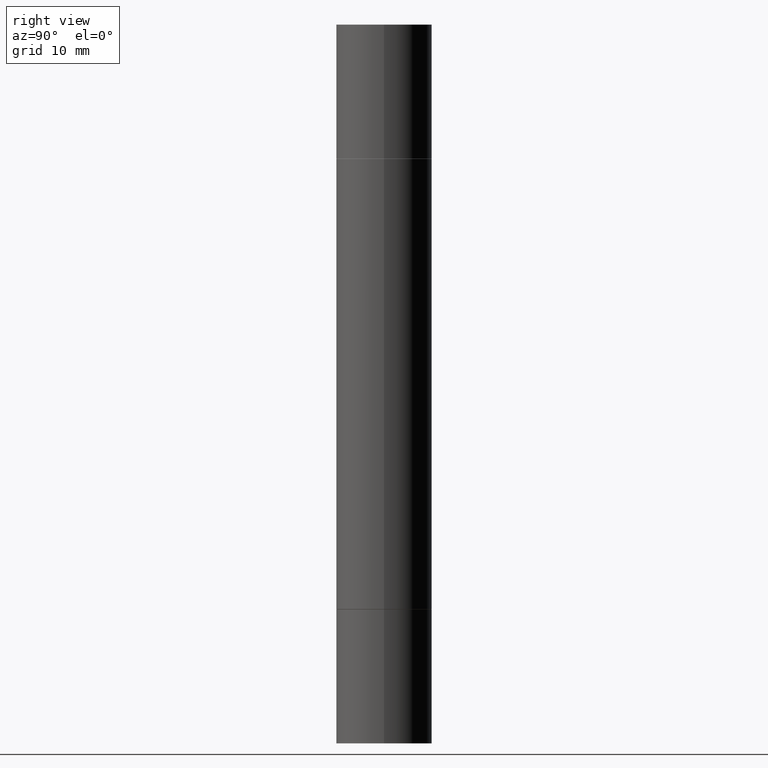
[diagram: clean part render]
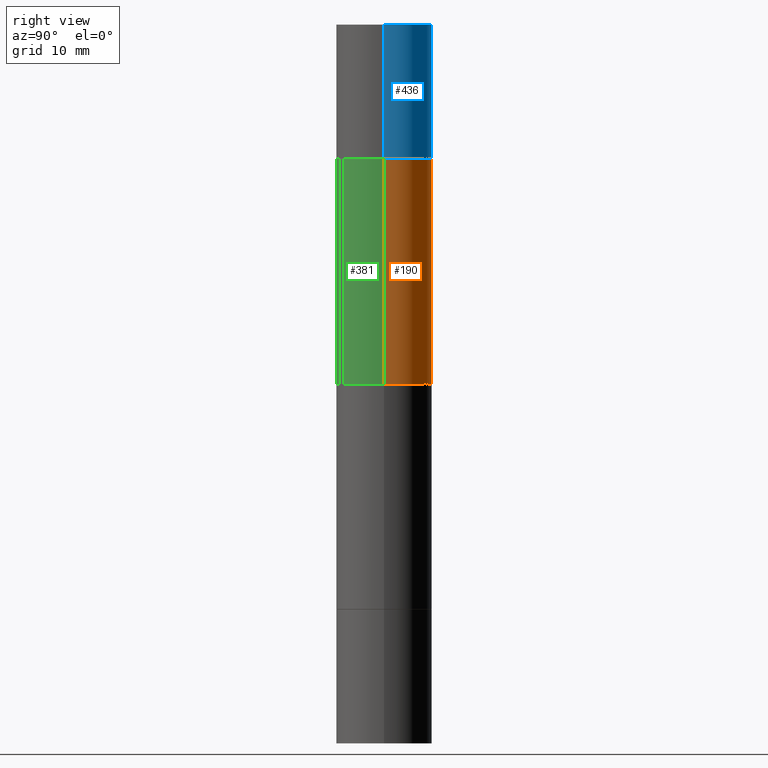
[diagram: same view with three faces highlighted in distinct colors, each labeled with its STEP entity id]
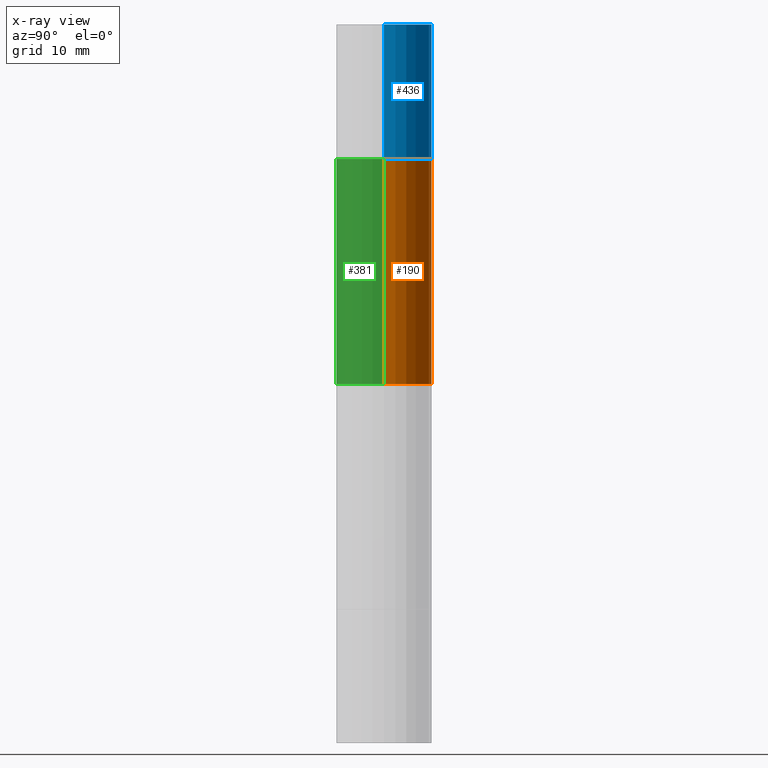
[diagram: x-ray of the same camera — body ghosted, the three highlighted faces saturated]
A machine part, right view with three faces highlighted in distinct colors.
The next image is the same camera in x-ray (body ghosted, the three faces saturated) — at least one of them is partly hidden behind the body in this view.
Their STEP definitions:

[orange] entity #190 — the highlighted cylindrical surface (partial cylindrical patch) has radius 5 mm, axis along (-0, -0, -1).
#14 = EDGE_CURVE ( 'NONE', #471, #207, #60, .T. ) ;
#21 = EDGE_CURVE ( 'NONE', #318, #207, #636, .T. ) ;
#44 = CARTESIAN_POINT ( 'NONE',  ( 5.870592416128037625E-29, -1.926693730311889446E-15, -0.5521999999999996911 ) ) ;
#54 = DIRECTION ( 'NONE',  ( 0.000000000000000000, 1.000000000000000000, -4.163344669033678790E-15 ) ) ;
#60 = LINE ( 'NONE', #326, #477 ) ;
#61 = CIRCLE ( 'NONE', #456, 0.1968500000000000250 ) ;
#157 = EDGE_LOOP ( 'NONE', ( #615, #526, #525, #640 ) ) ;
#178 = CARTESIAN_POINT ( 'NONE',  ( 3.610490145451734531E-29, -5.154823048668018475E-15, -1.476399999999999491 ) ) ;
#190 = ADVANCED_FACE ( 'NONE', ( #503 ), #298, .T. ) ;
#192 = CARTESIAN_POINT ( 'NONE',  ( 0.000000000000000000, -1.031172645228302408E-14, -2.952799999999998981 ) ) ;
#207 = VERTEX_POINT ( 'NONE', #344 ) ;
#217 = CARTESIAN_POINT ( 'NONE',  ( -0.1968499999999998307, -8.961237421421701017E-15, -2.952799999999998981 ) ) ;
#235 = AXIS2_PLACEMENT_3D ( 'NONE', #192, #667, #605 ) ;
#252 = CARTESIAN_POINT ( 'NONE',  ( -0.1968499999999998307, -2.190269358628626559E-15, -1.476399999999999491 ) ) ;
#257 = DIRECTION ( 'NONE',  ( 1.000000000000000000, -6.982962677686267499E-15, 0.000000000000000000 ) ) ;
#271 = LINE ( 'NONE', #217, #331 ) ;
#298 = CYLINDRICAL_SURFACE ( 'NONE', #235, 0.1968499999999998307 ) ;
#318 = VERTEX_POINT ( 'NONE', #252 ) ;
#325 = CARTESIAN_POINT ( 'NONE',  ( 0.1968500000000000250, -3.301289933414429871E-15, -0.5521999999999996911 ) ) ;
#326 = CARTESIAN_POINT ( 'NONE',  ( 0.1968499999999998307, -1.168632265538556411E-14, -2.952799999999998981 ) ) ;
#331 = VECTOR ( 'NONE', #634, 39.37007874015748143 ) ;
#333 = DIRECTION ( 'NONE',  ( -0.000000000000000000, -3.492185875197449130E-15, -1.000000000000000000 ) ) ;
#338 = EDGE_CURVE ( 'NONE', #471, #570, #61, .T. ) ;
#344 = CARTESIAN_POINT ( 'NONE',  ( 0.1968499999999998307, -4.915354592592491624E-15, -1.476399999999999491 ) ) ;
#415 = AXIS2_PLACEMENT_3D ( 'NONE', #178, #333, #54 ) ;
#442 = EDGE_CURVE ( 'NONE', #570, #318, #271, .T. ) ;
#456 = AXIS2_PLACEMENT_3D ( 'NONE', #44, #581, #257 ) ;
#471 = VERTEX_POINT ( 'NONE', #325 ) ;
#477 = VECTOR ( 'NONE', #538, 39.37007874015748143 ) ;
#503 = FACE_OUTER_BOUND ( 'NONE', #157, .T. ) ;
#525 = ORIENTED_EDGE ( 'NONE', *, *, #14, .T. ) ;
#526 = ORIENTED_EDGE ( 'NONE', *, *, #338, .F. ) ;
#538 = DIRECTION ( 'NONE',  ( -2.445468806185136877E-29, -3.492890411551753071E-15, -1.000000000000000000 ) ) ;
#570 = VERTEX_POINT ( 'NONE', #652 ) ;
#581 = DIRECTION ( 'NONE',  ( 2.445468806185136597E-29, 3.492890411551752677E-15, 1.000000000000000000 ) ) ;
#605 = DIRECTION ( 'NONE',  ( 1.000000000000000000, -6.982962677686264344E-15, 0.000000000000000000 ) ) ;
#615 = ORIENTED_EDGE ( 'NONE', *, *, #442, .F. ) ;
#634 = DIRECTION ( 'NONE',  ( -2.445468806185136877E-29, -3.492890411551753071E-15, -1.000000000000000000 ) ) ;
#636 = CIRCLE ( 'NONE', #415, 0.1968499999999998307 ) ;
#640 = ORIENTED_EDGE ( 'NONE', *, *, #21, .F. ) ;
#652 = CARTESIAN_POINT ( 'NONE',  ( -0.1968500000000000250, -5.762046994505618475E-16, -0.5521999999999996911 ) ) ;
#667 = DIRECTION ( 'NONE',  ( -2.445468806185136597E-29, -3.492890411551752677E-15, -1.000000000000000000 ) ) ;

[blue] entity #436 — the highlighted cylindrical surface (partial cylindrical patch) has radius 5 mm, axis along (-0, -0, -1).
#29 = CARTESIAN_POINT ( 'NONE',  ( 0.1968500000000000250, -1.372515848155552113E-15, 5.463695987328526437E-16 ) ) ;
#47 = ORIENTED_EDGE ( 'NONE', *, *, #673, .T. ) ;
#82 = CARTESIAN_POINT ( 'NONE',  ( 5.873037884934223228E-29, -1.923200839900336120E-15, -0.5511999999999995792 ) ) ;
#86 = AXIS2_PLACEMENT_3D ( 'NONE', #204, #627, #206 ) ;
#104 = DIRECTION ( 'NONE',  ( -2.445468806185136597E-29, -3.492890411551752677E-15, -1.000000000000000000 ) ) ;
#108 = CYLINDRICAL_SURFACE ( 'NONE', #173, 0.1968500000000000250 ) ;
#143 = CIRCLE ( 'NONE', #638, 0.1968500000000000250 ) ;
#173 = AXIS2_PLACEMENT_3D ( 'NONE', #224, #104, #335 ) ;
#193 = EDGE_LOOP ( 'NONE', ( #218, #394, #376, #47 ) ) ;
#198 = DIRECTION ( 'NONE',  ( 1.000000000000000000, -6.982962677686267499E-15, 0.000000000000000000 ) ) ;
#204 = CARTESIAN_POINT ( 'NONE',  ( 7.220980290903470182E-29, 2.080354946989631982E-18, 5.463695987328526437E-16 ) ) ;
#206 = DIRECTION ( 'NONE',  ( 1.000000000000000000, -6.982962677686265922E-15, 0.000000000000000000 ) ) ;
#218 = ORIENTED_EDGE ( 'NONE', *, *, #259, .F. ) ;
#224 = CARTESIAN_POINT ( 'NONE',  ( 0.000000000000000000, -1.031172645228302408E-14, -2.952799999999998981 ) ) ;
#244 = CARTESIAN_POINT ( 'NONE',  ( -0.1968500000000000250, 3.899287883846532010E-16, -0.5511999999999995792 ) ) ;
#259 = EDGE_CURVE ( 'NONE', #594, #582, #317, .T. ) ;
#280 = LINE ( 'NONE', #589, #661 ) ;
#317 = LINE ( 'NONE', #670, #676 ) ;
#332 = FACE_OUTER_BOUND ( 'NONE', #193, .T. ) ;
#335 = DIRECTION ( 'NONE',  ( 1.000000000000000000, -6.982962677686267499E-15, 0.000000000000000000 ) ) ;
#350 = EDGE_CURVE ( 'NONE', #632, #594, #356, .T. ) ;
#356 = CIRCLE ( 'NONE', #86, 0.1968500000000000250 ) ;
#376 = ORIENTED_EDGE ( 'NONE', *, *, #464, .T. ) ;
#378 = CARTESIAN_POINT ( 'NONE',  ( 0.1968500000000000250, -3.297797043002877729E-15, -0.5511999999999995792 ) ) ;
#394 = ORIENTED_EDGE ( 'NONE', *, *, #350, .F. ) ;
#436 = ADVANCED_FACE ( 'NONE', ( #332 ), #108, .T. ) ;
#441 = VERTEX_POINT ( 'NONE', #378 ) ;
#460 = DIRECTION ( 'NONE',  ( 2.445468806185136597E-29, 3.492890411551752677E-15, 1.000000000000000000 ) ) ;
#464 = EDGE_CURVE ( 'NONE', #632, #441, #280, .T. ) ;
#582 = VERTEX_POINT ( 'NONE', #244 ) ;
#589 = CARTESIAN_POINT ( 'NONE',  ( 0.1968500000000000250, -1.168632265538556569E-14, -2.952799999999998981 ) ) ;
#594 = VERTEX_POINT ( 'NONE', #600 ) ;
#600 = CARTESIAN_POINT ( 'NONE',  ( -0.1968500000000000250, 3.899287883846529545E-16, 5.463695987328561936E-16 ) ) ;
#618 = DIRECTION ( 'NONE',  ( -2.445468806185136877E-29, -3.492890411551753071E-15, -1.000000000000000000 ) ) ;
#627 = DIRECTION ( 'NONE',  ( 2.445468806185136597E-29, 3.492890411551752677E-15, 1.000000000000000000 ) ) ;
#632 = VERTEX_POINT ( 'NONE', #29 ) ;
#638 = AXIS2_PLACEMENT_3D ( 'NONE', #82, #460, #198 ) ;
#639 = DIRECTION ( 'NONE',  ( -2.445468806185136877E-29, -3.492890411551753071E-15, -1.000000000000000000 ) ) ;
#661 = VECTOR ( 'NONE', #639, 39.37007874015748143 ) ;
#670 = CARTESIAN_POINT ( 'NONE',  ( -0.1968500000000000250, -8.961237421421697861E-15, -2.952799999999998981 ) ) ;
#673 = EDGE_CURVE ( 'NONE', #441, #582, #143, .T. ) ;
#676 = VECTOR ( 'NONE', #618, 39.37007874015748143 ) ;

[green] entity #381 — the highlighted cylindrical surface (partial cylindrical patch) has radius 5 mm, axis along (-0, -0, -1).
#4 = DIRECTION ( 'NONE',  ( -0.000000000000000000, -3.492185875197449130E-15, -1.000000000000000000 ) ) ;
#14 = EDGE_CURVE ( 'NONE', #471, #207, #60, .T. ) ;
#60 = LINE ( 'NONE', #326, #477 ) ;
#92 = DIRECTION ( 'NONE',  ( -2.445468806185136597E-29, -3.492890411551752677E-15, -1.000000000000000000 ) ) ;
#207 = VERTEX_POINT ( 'NONE', #344 ) ;
#211 = ORIENTED_EDGE ( 'NONE', *, *, #14, .F. ) ;
#212 = EDGE_LOOP ( 'NONE', ( #219, #479, #258, #211 ) ) ;
#214 = CARTESIAN_POINT ( 'NONE',  ( 3.610490145451734531E-29, -5.154823048668018475E-15, -1.476399999999999491 ) ) ;
#217 = CARTESIAN_POINT ( 'NONE',  ( -0.1968499999999998307, -8.961237421421701017E-15, -2.952799999999998981 ) ) ;
#219 = ORIENTED_EDGE ( 'NONE', *, *, #454, .F. ) ;
#252 = CARTESIAN_POINT ( 'NONE',  ( -0.1968499999999998307, -2.190269358628626559E-15, -1.476399999999999491 ) ) ;
#258 = ORIENTED_EDGE ( 'NONE', *, *, #416, .F. ) ;
#260 = CYLINDRICAL_SURFACE ( 'NONE', #300, 0.1968499999999998307 ) ;
#271 = LINE ( 'NONE', #217, #331 ) ;
#275 = CIRCLE ( 'NONE', #489, 0.1968499999999998307 ) ;
#289 = AXIS2_PLACEMENT_3D ( 'NONE', #591, #429, #437 ) ;
#300 = AXIS2_PLACEMENT_3D ( 'NONE', #571, #92, #304 ) ;
#304 = DIRECTION ( 'NONE',  ( 1.000000000000000000, -6.982962677686264344E-15, 0.000000000000000000 ) ) ;
#318 = VERTEX_POINT ( 'NONE', #252 ) ;
#325 = CARTESIAN_POINT ( 'NONE',  ( 0.1968500000000000250, -3.301289933414429871E-15, -0.5521999999999996911 ) ) ;
#326 = CARTESIAN_POINT ( 'NONE',  ( 0.1968499999999998307, -1.168632265538556411E-14, -2.952799999999998981 ) ) ;
#331 = VECTOR ( 'NONE', #634, 39.37007874015748143 ) ;
#344 = CARTESIAN_POINT ( 'NONE',  ( 0.1968499999999998307, -4.915354592592491624E-15, -1.476399999999999491 ) ) ;
#359 = FACE_OUTER_BOUND ( 'NONE', #212, .T. ) ;
#381 = ADVANCED_FACE ( 'NONE', ( #359 ), #260, .T. ) ;
#416 = EDGE_CURVE ( 'NONE', #207, #318, #275, .T. ) ;
#429 = DIRECTION ( 'NONE',  ( 2.445468806185136597E-29, 3.492890411551752677E-15, 1.000000000000000000 ) ) ;
#434 = DIRECTION ( 'NONE',  ( 0.000000000000000000, 1.000000000000000000, -4.163344669033678790E-15 ) ) ;
#437 = DIRECTION ( 'NONE',  ( 1.000000000000000000, -6.982962677686267499E-15, 0.000000000000000000 ) ) ;
#442 = EDGE_CURVE ( 'NONE', #570, #318, #271, .T. ) ;
#454 = EDGE_CURVE ( 'NONE', #570, #471, #498, .T. ) ;
#471 = VERTEX_POINT ( 'NONE', #325 ) ;
#477 = VECTOR ( 'NONE', #538, 39.37007874015748143 ) ;
#479 = ORIENTED_EDGE ( 'NONE', *, *, #442, .T. ) ;
#489 = AXIS2_PLACEMENT_3D ( 'NONE', #214, #4, #434 ) ;
#498 = CIRCLE ( 'NONE', #289, 0.1968500000000000250 ) ;
#538 = DIRECTION ( 'NONE',  ( -2.445468806185136877E-29, -3.492890411551753071E-15, -1.000000000000000000 ) ) ;
#570 = VERTEX_POINT ( 'NONE', #652 ) ;
#571 = CARTESIAN_POINT ( 'NONE',  ( 0.000000000000000000, -1.031172645228302408E-14, -2.952799999999998981 ) ) ;
#591 = CARTESIAN_POINT ( 'NONE',  ( 5.870592416128037625E-29, -1.926693730311889446E-15, -0.5521999999999996911 ) ) ;
#634 = DIRECTION ( 'NONE',  ( -2.445468806185136877E-29, -3.492890411551753071E-15, -1.000000000000000000 ) ) ;
#652 = CARTESIAN_POINT ( 'NONE',  ( -0.1968500000000000250, -5.762046994505618475E-16, -0.5521999999999996911 ) ) ;